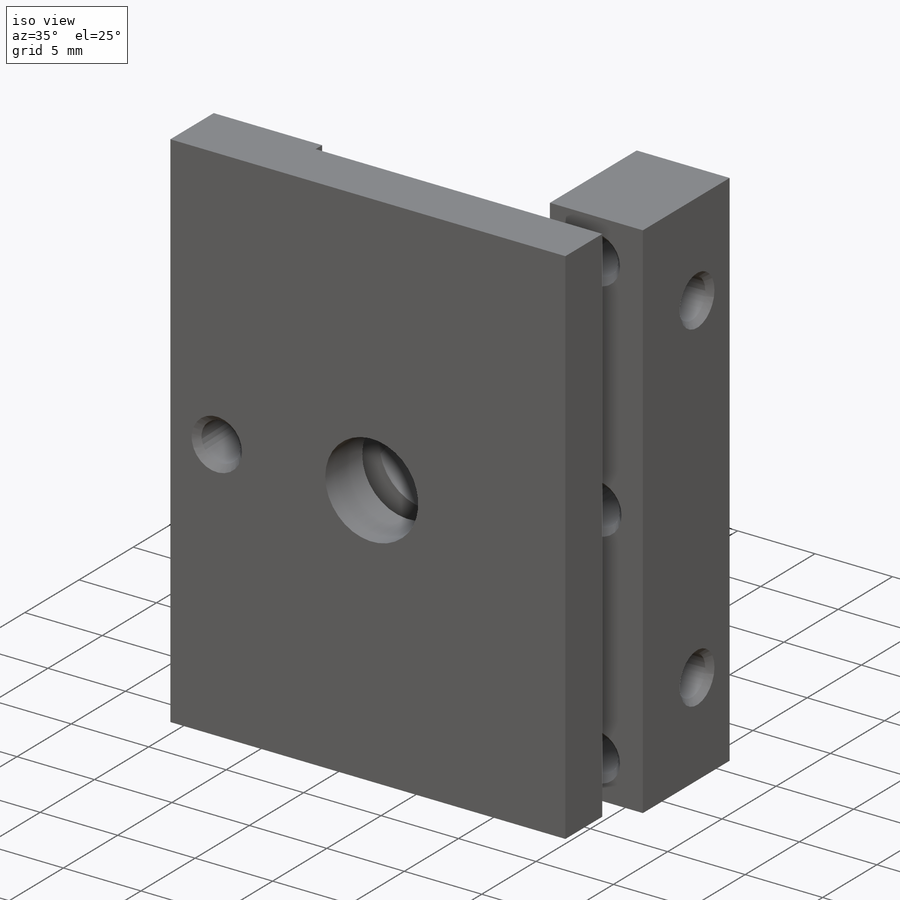
[diagram: iso view]
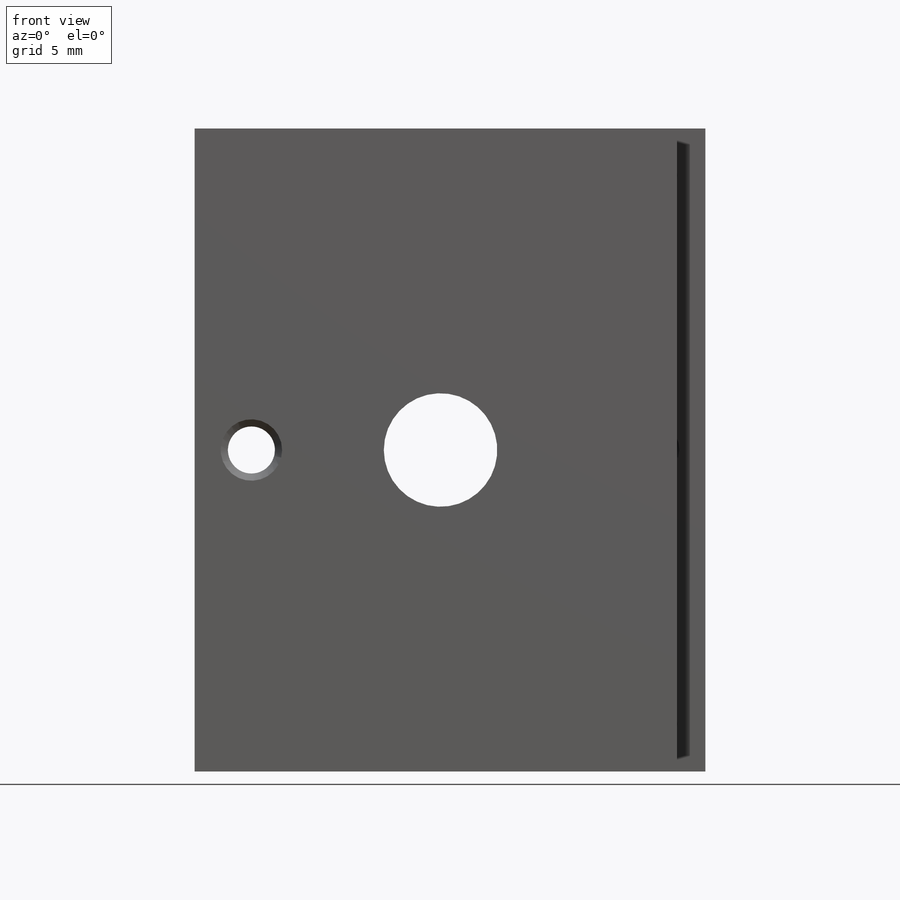
[diagram: front view]
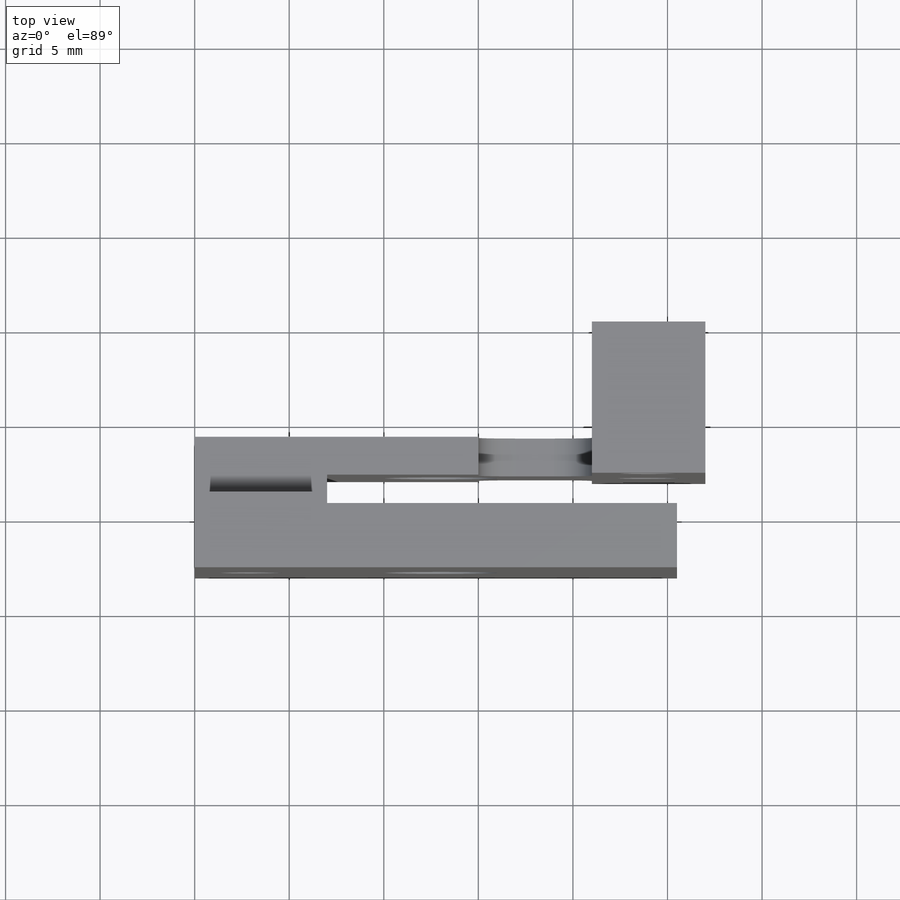
[diagram: top view]
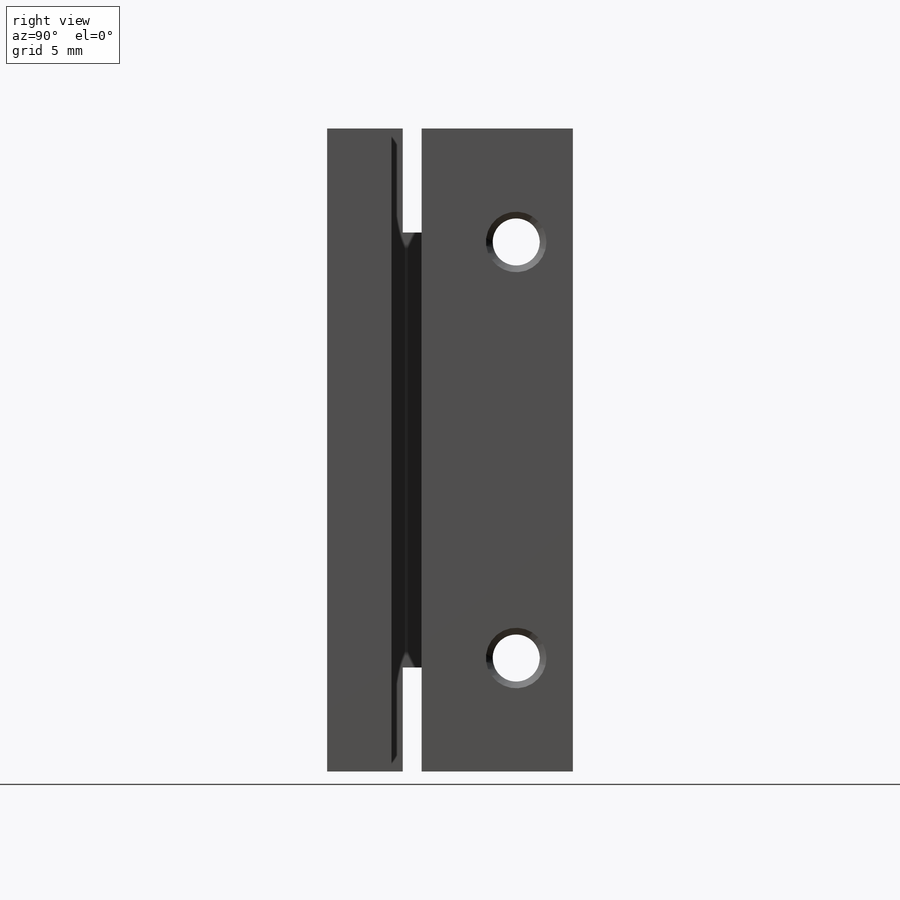
[diagram: right view]
SOLIDWORKS PART (.sldprt)
format: sldprt  version: not decoded by parser v0  size: 662,016 bytes
history: native  units: mm
features: sketch x19, cut_extrude x9, thread x8, plane x4, hole x4, extrude x2, material x1 (+26 scaffold rows collapsed)
feature tree (73):
  scaffold x26  (default folders/planes/origin — collapsed)
  material  "2024-T4"
  plane  "Спереди"
  plane  "Сверху"
  plane  "Справа"
  sketch  "Эскиз1"  dims[D1=27.0mm D2=34.0mm]
  extrude  "Вытянуть1"  Depth=13mm
  sketch  "Эскиз2"  dims[c1.D1=3.0mm c1.D2=1.6mm c1.D3=7.0mm c1.D4=3.0mm c1.D5=8.5mm c2.D4=0.3mm c2.D1=8.0mm]
  cut_extrude  "Вырез-Вытянуть1"  [1 undecoded]
  sketch  "Эскиз3"  dims[D1=2.0mm D2=6.0mm D3=6.0mm D4=11.0mm D5=5.5mm]
  cut_extrude  "Вырез-Вытянуть2"  Depth=9mm
  sketch  "Эскиз4"  dims[D1=1.5mm]
  cut_extrude  "Вырез-Вытянуть3"  [1 undecoded]
  sketch  "Эскиз17"  dims[c1.D1=~6.22458mm c1.D2=~6.22458mm c1.D3=~6.22458mm c1.D4=6.0mm c2.D3=1.9mm c2.D1=6.0mm c2.D2=5.0mm c3.D3=5.0mm c3.D1=4.0mm c3.D2=7.0mm c3.D4=2.0mm c3.D5=2.0mm]
  cut_extrude  "Вырез-Вытянуть9"  Depth=4mm
  sketch  "Эскиз11"  dims[c1.D4=1.9mm c1.D1=6.0mm c1.D2=2.0mm c1.D3=2.0mm c2.D1=6.0mm]
  cut_extrude  "Вырез-Вытянуть6"  Depth=0.2mm
  sketch  "Эскиз12"
  cut_extrude  "Вырез-Вытянуть7"  Depth=6mm
  sketch  "Эскиз8"  dims[c1.D1=6.0mm c1.D2=6.0mm c1.D3=6.0mm c2.D2=10.0mm c2.D3=11.0mm]
  cut_extrude  "Вырез-Вытянуть4"  [1 undecoded]
  plane  "Плоскость1"
  sketch  "Эскиз15"  dims[c1.D1=2.0mm c1.D2=2.0mm c1.D3=2.0mm c1.D4=2.0mm c2.D2=3.0mm c2.D3=3.0mm c2.D4=3.0mm]
  extrude  "Вытянуть2"  Depth=0.5mm
  sketch  "Эскиз18"  dims[c1.D5=1.9mm c1.D1=2.0mm c1.D2=2.0mm c1.D3=26.0mm c1.D4=4.0mm c2.D3=5.0mm]
  cut_extrude  "Вырез-Вытянуть10"  [1 undecoded]
  sketch  "Эскиз16"  dims[c1.D3=7.0mm c1.D1=2.0mm c1.D2=2.0mm c1.D4=10.0mm c1.D5=30.0mm c2.D1=9.0mm]
  cut_extrude  "Вырез-Вытянуть8"  Depth=1.6mm
  hole  "M2.5 Tapped Hole1"  [1 undecoded]
  sketch  "Эскиз14"  dims[D1=3.0mm D2=3.0mm D3=3.0mm D4=3.0mm]
  sketch  "Эскиз13"  dims[hole-wizard template sketch: 39 standard entries collapsed; hole parameters kept: c13.Диаметр сверла=2.05mm c13.Глубина сверла=4.0mm c13.Диаметр передней зенковки=2.7mm c13.D4=~33.297463mm c13.Угол передней зенковки=110.0deg c14.D5=~14.816244mm c14.Угол заточки сверла=118.0deg]
  thread  "Отверстие резьбы3"  Diameter=4mm  [1 undecoded]
  thread  "Отверстие резьбы4"  Diameter=4mm  [1 undecoded]
  hole  "Отверстие обработанное метчиком M31"  [1 undecoded]
  sketch  "Эскиз20"  dims[D1=3.0mm D2=22.0mm D3=6.0mm]
  sketch  "Эскиз19"  dims[hole-wizard template sketch: 47 standard entries collapsed; hole parameters kept: c15.Глубина проходного сверла=6.0mm c15.Диаметр передней зенковки=3.2mm c15.D4=~3.666174mm c15.Угол передней зенковки=90.0deg c15.Диаметр задней зенковки=3.2mm c15.D6=~9.919017mm c15.Угол задней зенковки=90.0deg]
  thread  "Отверстие резьбы5"  Diameter=3mm  [1 undecoded]
  thread  "Отверстие резьбы6"  Diameter=3mm  [1 undecoded]
  hole  "Отверстие обработанное метчиком M3x0.52"  [1 undecoded]
  sketch  "Трехмерный эскиз1"  dims[c1.D5=6.0mm c1.D1=3.0mm c1.D2=3.0mm c1.D3=~17.218343mm c2.D5=17.0mm c2.D4=17.0mm c3.D5=~10.003558mm c3.D3=17.0mm]
  sketch  "Эскиз23"  dims[hole-wizard template sketch: 47 standard entries collapsed; hole parameters kept: c15.Глубина проходного сверла=7.0mm c15.Диаметр передней зенковки=3.25mm c15.D4=~3.666174mm c15.Угол передней зенковки=90.0deg c15.Диаметр задней зенковки=3.25mm c15.D6=~9.919017mm c15.Угол задней зенковки=90.0deg]
  thread  "Отверстие резьбы7"  Diameter=3mm  [1 undecoded]
  thread  "Отверстие резьбы8"  Diameter=3mm  [1 undecoded]
  hole  "Отверстие обработанное метчиком #4-401"  [1 undecoded]
  sketch  "Эскиз25"  dims[D1=3.0mm D2=29.0mm D3=2.5mm]
  sketch  "Эскиз24"  dims[hole-wizard template sketch: 46 standard entries collapsed; hole parameters kept: c15.Диаметр проходного сверла=2.2606mm c15.Глубина проходного сверла=8.0mm c15.Диаметр передней зенковки=3.048mm c15.D4=~3.666174mm c15.Угол передней зенковки=90.0deg c15.Диаметр задней зенковки=3.048mm c15.D6=~9.919017mm c15.Угол задней зенковки=90.0deg]
  thread  "Отверстие резьбы9"  Diameter=2.8448mm  [1 undecoded]
  thread  "Отверстие резьбы10"  Diameter=2.8448mm  [1 undecoded]
decode coverage: 33 of 42 modeling features carry decoded parameters
note: ~ marks probable driven/reference dimensions
note: 16 parameter values undecoded
summary: no parameter record found for 8 features
note: suppression state not decoded; provenance and decode notes live in map.json
